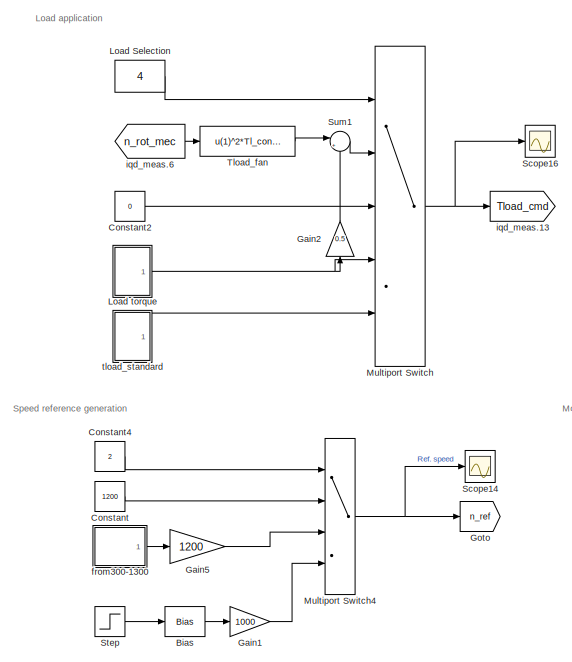
[diagram: root canvas - part 1/3, middle left region]
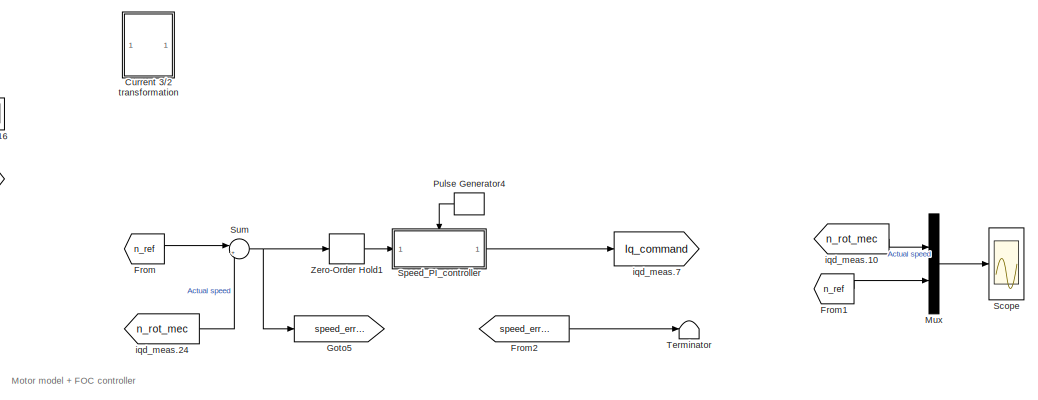
[diagram: root canvas - part 2/3, top center region]
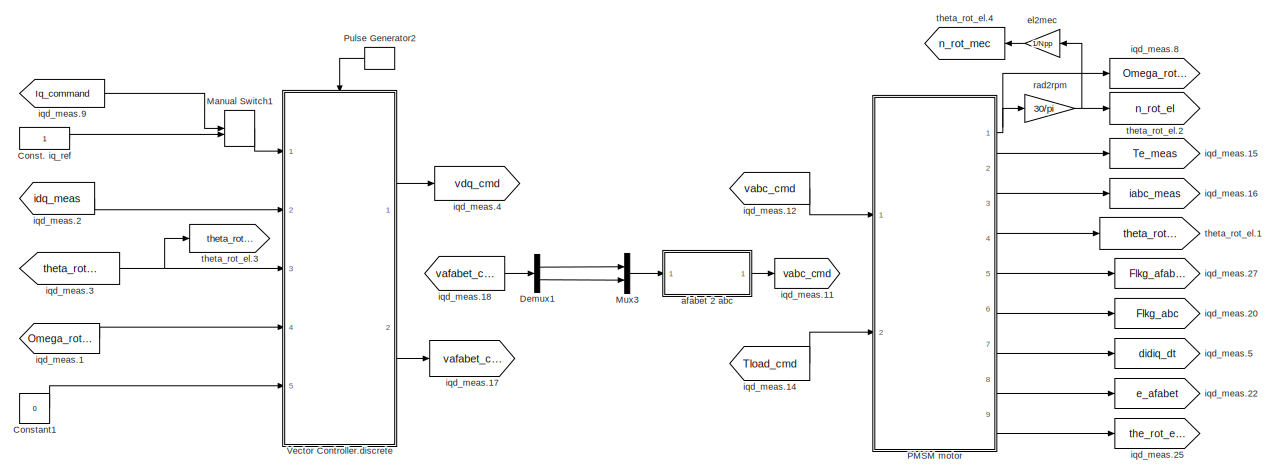
[diagram: root canvas - part 3/3, bottom right region]
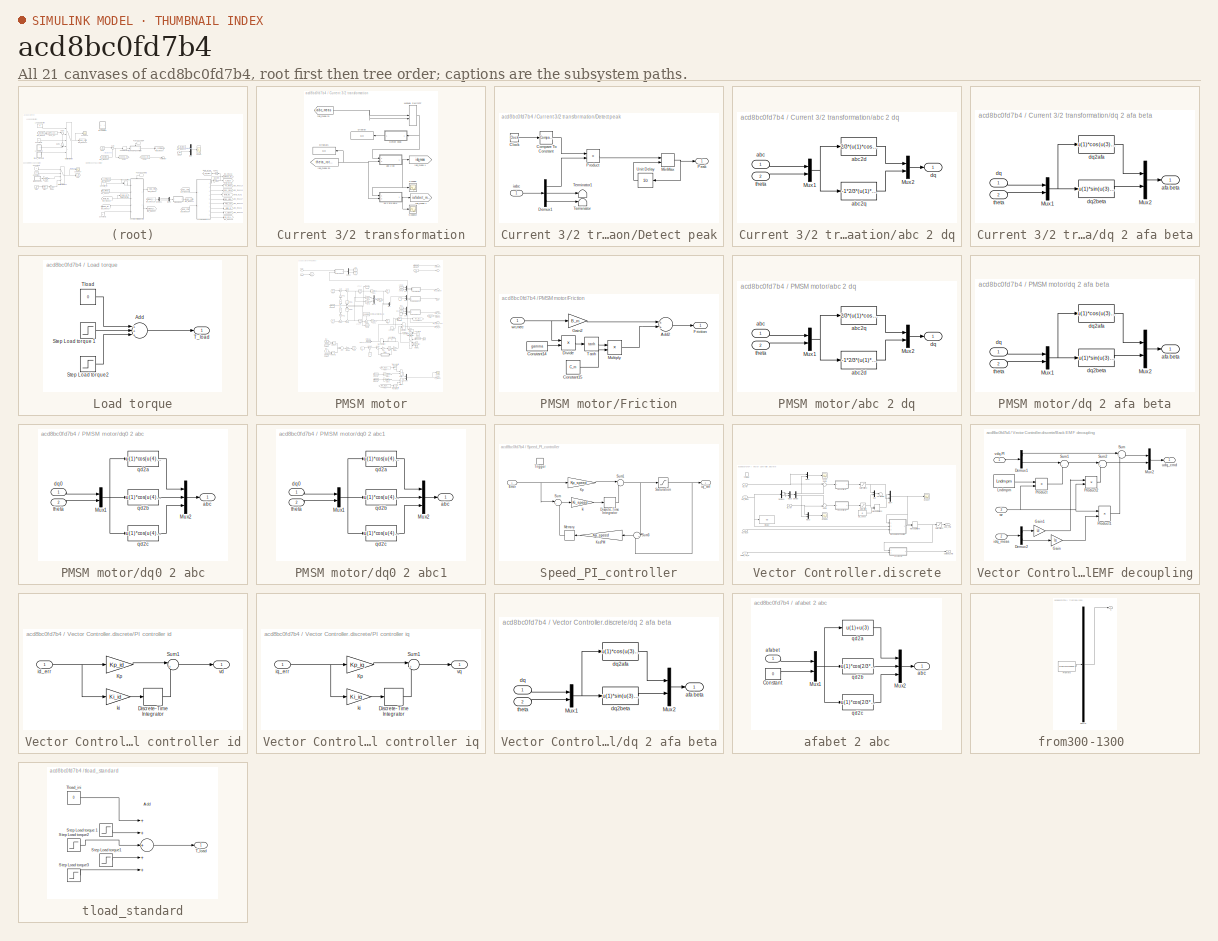
[diagram: thumbnail index - all 21 canvases of the model, root first then tree order]
MODEL slx_acd8bc0fd7b4
KIND model
CONFIG AbsTol = auto
CONFIG EnableMultiTasking = on
CONFIG FixedStep = 1/fs/4
CONFIG InitFcn = controllers\nmodel_parameters\nKT2C = 1/(3/2)/(Npp*Lndmpm);\nTload = 10;\n
CONFIG MaxStep = 1/fs
CONFIG MinStep = auto
CONFIG RelTol = 1e-5
CONFIG SampleTimeConstraint = Unconstrained
CONFIG Solver = ode45
CONFIG SolverName = ode45
CONFIG StartTime = 0
CONFIG StopTime = 16
BLOCK [Bias] Bias
  Bias = 0.3
  SaturateOnIntegerOverflow = off
BLOCK [Constant] Const. iq_ref
BLOCK [Constant] Constant
  Value = 1200
BLOCK [Constant] Constant1
  Value = 0
BLOCK [Constant] Constant2
  Value = 0
BLOCK [Constant] Constant4
  Value = 2
BLOCK [SubSystem] Current 3//2 transformation
  Ports = []
  RequestExecContextInheritance = off
BLOCK [SubSystem] Current 3//2 transformation/Detect peak
  Ports = [1, 1]
  RequestExecContextInheritance = off
BLOCK [Clock] Current 3//2 transformation/Detect peak/Clock
BLOCK [Reference] Current 3//2 transformation/Detect peak/Compare To Constant  REF=simulink/Logic and Bit
Operations/Compare
To Constant
  Ports = [1, 1]
  SourceBlock = simulink/Logic and Bit\nOperations/Compare\nTo Constant
  SourceProductBaseCode = SL
  SourceProductName = Simulink
  SourceType = Compare To Constant
BLOCK [Demux] Current 3//2 transformation/Detect peak/Demux1
  DisplayOption = bar
  Outputs = 3
  Ports = [1, 3]
BLOCK [MinMax] Current 3//2 transformation/Detect peak/MinMax
  Function = max
  InputSameDT = off
  Inputs = 2
  Ports = [2, 1]
  SaturateOnIntegerOverflow = off
BLOCK [Outport] Current 3//2 transformation/Detect peak/Peak
  IconDisplay = Port number
BLOCK [Product] Current 3//2 transformation/Detect peak/Product
  InputSameDT = off
  OutDataTypeStr = Inherit: Inherit via internal rule
  Ports = [2, 1]
  SaturateOnIntegerOverflow = off
BLOCK [Terminator] Current 3//2 transformation/Detect peak/Terminator
BLOCK [Terminator] Current 3//2 transformation/Detect peak/Terminator1
BLOCK [UnitDelay] Current 3//2 transformation/Detect peak/Unit Delay
  SampleTime = 1/5e3
BLOCK [Inport] Current 3//2 transformation/Detect peak/iabc
  IconDisplay = Port number
BLOCK [Display] Current 3//2 transformation/Display
  Decimation = 1
  Ports = [1]
BLOCK [Display] Current 3//2 transformation/Display1
  Decimation = 1
  Ports = [1]
BLOCK [ManualSwitch] Current 3//2 transformation/Manual Switch7
  CurrentSetting = 0
BLOCK [Scope] Current 3//2 transformation/Scope14
  Floating = off
  NumInputPorts = 1
  Ports = [1]
  ScopeSpecificationString = C++SS(StrPVP('Location','[119, 56, 1049, 720]'),StrPVP('Open','off'),MxPVP('AxesTitles',53,'struct(''axes1'',''%<SignalLabel>'')'),StrPVP('ShowLegends','off'),StrPVP('YMin','-5500'),StrPVP('YMax','5500'),StrPVP('SaveName','ScopeData27'),StrPVP('DataFormat','StructureWithTime'),StrPVP('LimitDataPoints','off'),StrPVP('BlockParamSampleTime','0'),StrPVP('Decimation','1'),StrPVP('BlockParamSampleInput'...<+8ch>
BLOCK [Scope] Current 3//2 transformation/Scope6
  Floating = off
  NumInputPorts = 1
  Ports = [1]
  ScopeSpecificationString = C++SS(StrPVP('Location','[533, 264, 1183, 659]'),StrPVP('Open','off'),StrPVP('ZoomMode','xonly'),MxPVP('AxesTitles',53,'struct(''axes1'',''%<SignalLabel>'')'),StrPVP('ShowLegends','off'),StrPVP('SaveName','ScopeData25'),StrPVP('DataFormat','StructureWithTime'),StrPVP('LimitDataPoints','off'),StrPVP('BlockParamSampleTime','0'),StrPVP('Decimation','1'),StrPVP('BlockParamSampleInput','off'))
BLOCK [SubSystem] Current 3//2 transformation/abc 2 dq
  Ports = [2, 1]
  RequestExecContextInheritance = off
BLOCK [Mux] Current 3//2 transformation/abc 2 dq/Mux1
  DisplayOption = bar
  Inputs = 2
  Ports = [2, 1]
BLOCK [Mux] Current 3//2 transformation/abc 2 dq/Mux2
  DisplayOption = bar
  Inputs = 2
  Ports = [2, 1]
BLOCK [Inport] Current 3//2 transformation/abc 2 dq/abc
  IconDisplay = Port number
BLOCK [Fcn] Current 3//2 transformation/abc 2 dq/abc2d
  Expr = 2/3*(u(1)*cos(u(4))+u(2)*cos(u(4)-2*pi/3)+u(3)*cos(u(4)-4*pi/3))
BLOCK [Fcn] Current 3//2 transformation/abc 2 dq/abc2q
  Expr = -1*2/3*(u(1)*sin(u(4))+u(2)*sin(u(4)-2*pi/3)+u(3)*sin(u(4)-4*pi/3))
BLOCK [Outport] Current 3//2 transformation/abc 2 dq/dq
  IconDisplay = Port number
BLOCK [Inport] Current 3//2 transformation/abc 2 dq/theta
  IconDisplay = Port number
  Port = 2
BLOCK [SubSystem] Current 3//2 transformation/dq 2 afa beta
  Ports = [2, 1]
  RequestExecContextInheritance = off
BLOCK [Mux] Current 3//2 transformation/dq 2 afa beta/Mux1
  DisplayOption = bar
  Inputs = 2
  Ports = [2, 1]
BLOCK [Mux] Current 3//2 transformation/dq 2 afa beta/Mux2
  DisplayOption = bar
  Inputs = 2
  Ports = [2, 1]
BLOCK [Outport] Current 3//2 transformation/dq 2 afa beta/afa beta
  IconDisplay = Port number
BLOCK [Inport] Current 3//2 transformation/dq 2 afa beta/dq
  IconDisplay = Port number
BLOCK [Fcn] Current 3//2 transformation/dq 2 afa beta/dq2afa
  Expr = u(1)*cos(u(3))-u(2)*sin(u(3))
BLOCK [Fcn] Current 3//2 transformation/dq 2 afa beta/dq2beta
  Expr = u(1)*sin(u(3))+u(2)*cos(u(3))
BLOCK [Inport] Current 3//2 transformation/dq 2 afa beta/theta
  IconDisplay = Port number
  Port = 2
BLOCK [Goto] Current 3//2 transformation/iqd_meas.1
  GotoTag = idq_meas
  TagVisibility = global
BLOCK [From] Current 3//2 transformation/iqd_meas.20
  CloseFcn = tagdialog Close
  GotoTag = theta_rot_el
  TagVisibility = global
BLOCK [From] Current 3//2 transformation/iqd_meas.21
  CloseFcn = tagdialog Close
  GotoTag = iabc_meas
  TagVisibility = global
BLOCK [Goto] Current 3//2 transformation/iqd_meas.7
  GotoTag = iafabet_meas
  TagVisibility = global
BLOCK [Demux] Demux1
  DisplayOption = bar
  Outputs = 2
  Ports = [1, 2]
BLOCK [From] From
  GotoTag = n_ref
BLOCK [From] From1
  GotoTag = n_ref
BLOCK [From] From2
  GotoTag = speed_error
BLOCK [Gain] Gain1
  Gain = 1000
  OutDataTypeStr = Inherit: Inherit via internal rule
  ParamDataTypeStr = Inherit: Inherit via internal rule
  SaturateOnIntegerOverflow = off
BLOCK [Gain] Gain2
  Gain = 0.5
  OutDataTypeStr = Inherit: Inherit via internal rule
  ParamDataTypeStr = Inherit: Inherit via internal rule
  SaturateOnIntegerOverflow = off
BLOCK [Gain] Gain5
  Gain = 1200
  OutDataTypeStr = Inherit: Inherit via internal rule
  ParamDataTypeStr = Inherit: Inherit via internal rule
  SaturateOnIntegerOverflow = off
BLOCK [Goto] Goto
  GotoTag = n_ref
BLOCK [Goto] Goto5
  GotoTag = speed_error
BLOCK [Constant] Load Selection
  Value = 4
BLOCK [SubSystem] Load torque
  Ports = [0, 1]
  RequestExecContextInheritance = off
BLOCK [Sum] Load torque/Add
  InputSameDT = off
  Inputs = +++
  OutDataTypeStr = Inherit: Inherit via internal rule
  Ports = [3, 1]
  SaturateOnIntegerOverflow = off
BLOCK [Step] Load torque/Step Load torque 1
  After = Tload
  SampleTime = 0
  Time = 1.5
BLOCK [Step] Load torque/Step Load torque2
  After = -Tload
  SampleTime = 0
  Time = 2
BLOCK [Outport] Load torque/T_load
  IconDisplay = Port number
BLOCK [Constant] Load torque/Tload
  Value = 0
BLOCK [ManualSwitch] Manual Switch1
BLOCK [MultiPortSwitch] Multiport Switch
  InputSameDT = off
  Inputs = 4
  Ports = [5, 1]
  SaturateOnIntegerOverflow = off
BLOCK [MultiPortSwitch] Multiport Switch4
  InputSameDT = off
  Ports = [4, 1]
  SaturateOnIntegerOverflow = off
BLOCK [Mux] Mux
  DisplayOption = bar
  Inputs = 2
  Ports = [2, 1]
BLOCK [Mux] Mux3
  DisplayOption = bar
  Inputs = 2
  Ports = [2, 1]
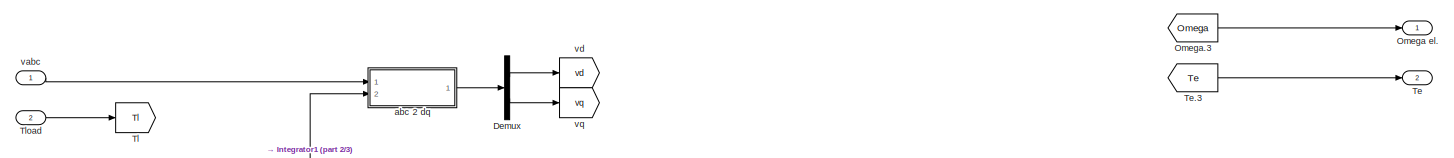
[diagram: PMSM motor - part 1/3, full width, top band]
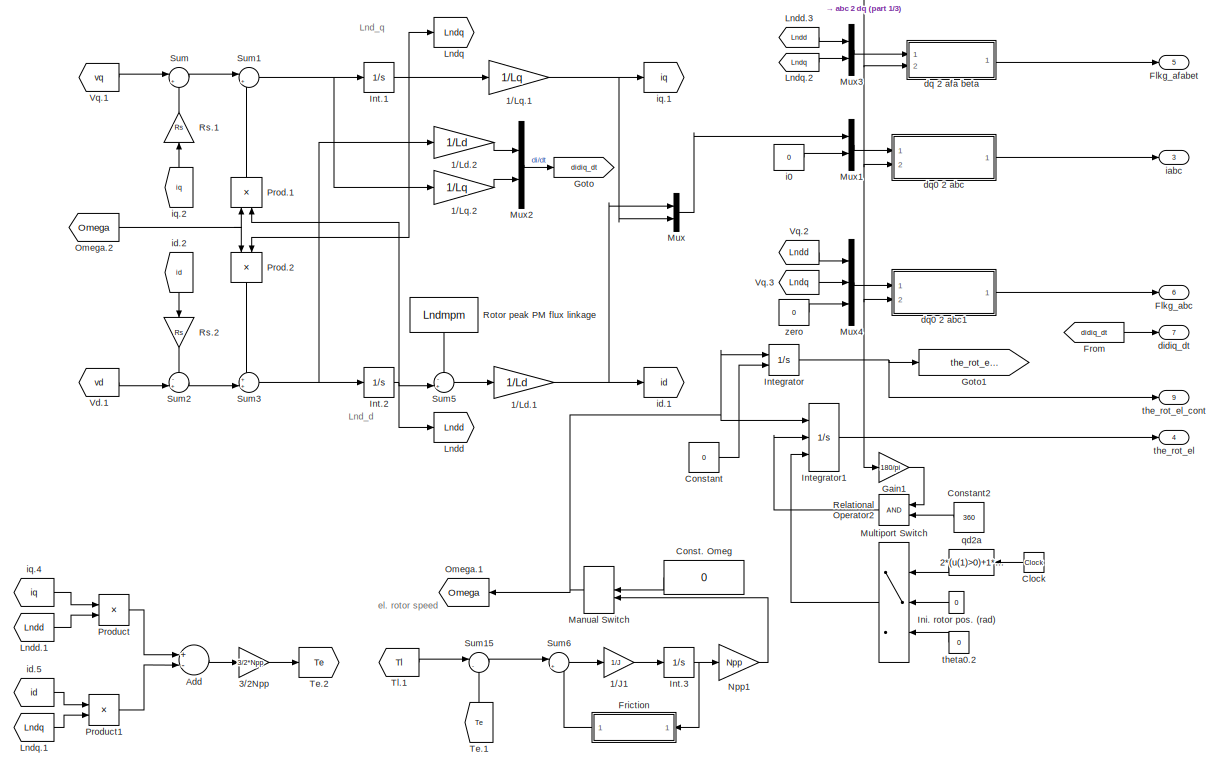
[diagram: PMSM motor - part 2/3, full width, middle band]
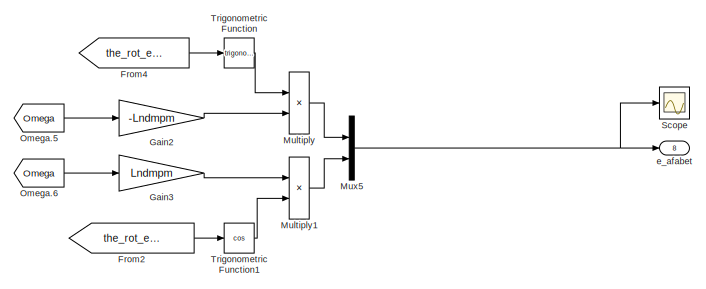
[diagram: PMSM motor - part 3/3, bottom right region]
BLOCK [SubSystem] PMSM motor
  Ports = [2, 9]
  RequestExecContextInheritance = off
BLOCK [Gain] PMSM motor/1//J1
  Gain = 1/J
  OutDataTypeStr = Inherit: Inherit via internal rule
  ParamDataTypeStr = Inherit: Inherit via internal rule
  SaturateOnIntegerOverflow = off
BLOCK [Gain] PMSM motor/1//Ld.1
  Gain = 1/Ld
  OutDataTypeStr = Inherit: Inherit via internal rule
  ParamDataTypeStr = Inherit: Inherit via internal rule
  SaturateOnIntegerOverflow = off
BLOCK [Gain] PMSM motor/1//Ld.2
  Gain = 1/Ld
  OutDataTypeStr = Inherit: Inherit via internal rule
  ParamDataTypeStr = Inherit: Inherit via internal rule
  SaturateOnIntegerOverflow = off
BLOCK [Gain] PMSM motor/1//Lq.1
  Gain = 1/Lq
  OutDataTypeStr = Inherit: Inherit via internal rule
  ParamDataTypeStr = Inherit: Inherit via internal rule
  SaturateOnIntegerOverflow = off
BLOCK [Gain] PMSM motor/1//Lq.2
  Gain = 1/Lq
  OutDataTypeStr = Inherit: Inherit via internal rule
  ParamDataTypeStr = Inherit: Inherit via internal rule
  SaturateOnIntegerOverflow = off
BLOCK [Gain] PMSM motor/3//2Npp
  Gain = 3/2*Npp
  OutDataTypeStr = Inherit: Inherit via internal rule
  ParamDataTypeStr = Inherit: Inherit via internal rule
  SaturateOnIntegerOverflow = off
BLOCK [Sum] PMSM motor/Add
  InputSameDT = off
  Inputs = +-
  OutDataTypeStr = Inherit: Inherit via internal rule
  Ports = [2, 1]
  SaturateOnIntegerOverflow = off
BLOCK [Clock] PMSM motor/Clock
BLOCK [Constant] PMSM motor/Const. Omeg
  Value = 0
BLOCK [Constant] PMSM motor/Constant
  Value = 0
BLOCK [Constant] PMSM motor/Constant2
  Value = 360
BLOCK [Demux] PMSM motor/Demux
  DisplayOption = bar
  Outputs = 2
  Ports = [1, 2]
BLOCK [Outport] PMSM motor/Flkg_abc
  IconDisplay = Port number
  Port = 6
BLOCK [Outport] PMSM motor/Flkg_afabet
  IconDisplay = Port number
  Port = 5
BLOCK [SubSystem] PMSM motor/Friction
  Ports = [1, 1]
  RequestExecContextInheritance = off
BLOCK [Sum] PMSM motor/Friction/Add2
  InputSameDT = off
  OutDataTypeStr = Inherit: Inherit via internal rule
  Ports = [2, 1]
  SaturateOnIntegerOverflow = off
BLOCK [Constant] PMSM motor/Friction/Constant14
  Value = gamma
BLOCK [Constant] PMSM motor/Friction/Constant15
  Value = C_m
BLOCK [Product] PMSM motor/Friction/Divide
  InputSameDT = off
  Inputs = */
  OutDataTypeStr = Inherit: Inherit via internal rule
  Ports = [2, 1]
  RndMeth = Floor
  SaturateOnIntegerOverflow = off
BLOCK [Outport] PMSM motor/Friction/Friction
  IconDisplay = Port number
BLOCK [Gain] PMSM motor/Friction/Gain2
  Gain = B_m
  OutDataTypeStr = Inherit: Inherit via internal rule
  ParamDataTypeStr = Inherit: Inherit via internal rule
  SaturateOnIntegerOverflow = off
BLOCK [Product] PMSM motor/Friction/Multiply
  InputSameDT = off
  OutDataTypeStr = Inherit: Inherit via internal rule
  Ports = [2, 1]
  RndMeth = Floor
  SaturateOnIntegerOverflow = off
BLOCK [Trigonometry] PMSM motor/Friction/Tanh
  Operator = tanh
  Ports = [1, 1]
BLOCK [Inport] PMSM motor/Friction/wr,mec
  IconDisplay = Port number
BLOCK [From] PMSM motor/From
  GotoTag = didiq_dt
BLOCK [From] PMSM motor/From2
  GotoTag = the_rot_el_cont
BLOCK [From] PMSM motor/From4
  GotoTag = the_rot_el_cont
BLOCK [Gain] PMSM motor/Gain1
  Gain = 180/pi
  OutDataTypeStr = Inherit: Inherit via internal rule
  ParamDataTypeStr = Inherit: Inherit via internal rule
  SaturateOnIntegerOverflow = off
BLOCK [Gain] PMSM motor/Gain2
  Gain = -Lndmpm
  OutDataTypeStr = Inherit: Inherit via internal rule
  ParamDataTypeStr = Inherit: Inherit via internal rule
  SaturateOnIntegerOverflow = off
BLOCK [Gain] PMSM motor/Gain3
  Gain = Lndmpm
  OutDataTypeStr = Inherit: Inherit via internal rule
  ParamDataTypeStr = Inherit: Inherit via internal rule
  SaturateOnIntegerOverflow = off
BLOCK [Goto] PMSM motor/Goto
  GotoTag = didiq_dt
BLOCK [Goto] PMSM motor/Goto1
  GotoTag = the_rot_el_cont
BLOCK [Constant] PMSM motor/Ini. rotor pos. (rad)
  Value = 0
BLOCK [Integrator] PMSM motor/Int.1
  Ports = [1, 1]
BLOCK [Integrator] PMSM motor/Int.2
  InitialCondition = Lndd_ini
  Ports = [1, 1]
BLOCK [Integrator] PMSM motor/Int.3
  InitialCondition = Omegae_ini/Npp
  Ports = [1, 1]
BLOCK [Integrator] PMSM motor/Integrator
  InitialConditionSource = external
  Ports = [2, 1]
BLOCK [Integrator] PMSM motor/Integrator1
  ExternalReset = rising
  InitialCondition = pi/3
  InitialConditionSource = external
  Ports = [3, 1]
BLOCK [Goto] PMSM motor/Lndd
  GotoTag = Lndd
BLOCK [From] PMSM motor/Lndd.1
  CloseFcn = tagdialog Close
  GotoTag = Lndd
BLOCK [From] PMSM motor/Lndd.3
  CloseFcn = tagdialog Close
  GotoTag = Lndd
BLOCK [Goto] PMSM motor/Lndq
  GotoTag = Lndq
BLOCK [From] PMSM motor/Lndq.1
  CloseFcn = tagdialog Close
  GotoTag = Lndq
BLOCK [From] PMSM motor/Lndq.2
  CloseFcn = tagdialog Close
  GotoTag = Lndq
BLOCK [ManualSwitch] PMSM motor/Manual Switch
  CurrentSetting = 0
BLOCK [Product] PMSM motor/Multiply
  InputSameDT = off
  OutDataTypeStr = Inherit: Inherit via internal rule
  Ports = [2, 1]
  RndMeth = Floor
  SaturateOnIntegerOverflow = off
BLOCK [Product] PMSM motor/Multiply1
  InputSameDT = off
  OutDataTypeStr = Inherit: Inherit via internal rule
  Ports = [2, 1]
  RndMeth = Floor
  SaturateOnIntegerOverflow = off
BLOCK [MultiPortSwitch] PMSM motor/Multiport Switch
  InputSameDT = off
  Inputs = 2
  Ports = [3, 1]
  SaturateOnIntegerOverflow = off
BLOCK [Mux] PMSM motor/Mux
  DisplayOption = bar
  Inputs = 2
  Ports = [2, 1]
BLOCK [Mux] PMSM motor/Mux1
  DisplayOption = bar
  Inputs = 2
  Ports = [2, 1]
BLOCK [Mux] PMSM motor/Mux2
  DisplayOption = bar
  Inputs = 2
  Ports = [2, 1]
BLOCK [Mux] PMSM motor/Mux3
  DisplayOption = bar
  Inputs = 2
  Ports = [2, 1]
BLOCK [Mux] PMSM motor/Mux4
  DisplayOption = bar
  Inputs = 3
  Ports = [3, 1]
BLOCK [Mux] PMSM motor/Mux5
  DisplayOption = bar
  Inputs = 2
  Ports = [2, 1]
BLOCK [Gain] PMSM motor/Npp1
  Gain = Npp
  OutDataTypeStr = Inherit: Inherit via internal rule
  ParamDataTypeStr = Inherit: Inherit via internal rule
  SaturateOnIntegerOverflow = off
BLOCK [Outport] PMSM motor/Omega el.
  IconDisplay = Port number
BLOCK [Goto] PMSM motor/Omega.1
  GotoTag = Omega
BLOCK [From] PMSM motor/Omega.2
  CloseFcn = tagdialog Close
  GotoTag = Omega
BLOCK [From] PMSM motor/Omega.3
  CloseFcn = tagdialog Close
  GotoTag = Omega
BLOCK [From] PMSM motor/Omega.5
  CloseFcn = tagdialog Close
  GotoTag = Omega
BLOCK [From] PMSM motor/Omega.6
  CloseFcn = tagdialog Close
  GotoTag = Omega
BLOCK [Product] PMSM motor/Prod.1
  InputSameDT = off
  OutDataTypeStr = Inherit: Inherit via internal rule
  Ports = [2, 1]
  SaturateOnIntegerOverflow = off
BLOCK [Product] PMSM motor/Prod.2
  InputSameDT = off
  OutDataTypeStr = Inherit: Inherit via internal rule
  Ports = [2, 1]
  SaturateOnIntegerOverflow = off
BLOCK [Product] PMSM motor/Product
  InputSameDT = off
  OutDataTypeStr = Inherit: Inherit via internal rule
  Ports = [2, 1]
  SaturateOnIntegerOverflow = off
BLOCK [Product] PMSM motor/Product1
  InputSameDT = off
  OutDataTypeStr = Inherit: Inherit via internal rule
  Ports = [2, 1]
  SaturateOnIntegerOverflow = off
BLOCK [RelationalOperator] PMSM motor/Relational Operator2
  InputSameDT = off
  OutDataTypeStr = boolean
  Ports = [2, 1]
BLOCK [Constant] PMSM motor/Rotor peak PM flux linkage
  Value = Lndmpm
BLOCK [Gain] PMSM motor/Rs.1
  Gain = Rs
  OutDataTypeStr = Inherit: Inherit via internal rule
  ParamDataTypeStr = Inherit: Inherit via internal rule
  SaturateOnIntegerOverflow = off
BLOCK [Gain] PMSM motor/Rs.2
  Gain = Rs
  OutDataTypeStr = Inherit: Inherit via internal rule
  ParamDataTypeStr = Inherit: Inherit via internal rule
  SaturateOnIntegerOverflow = off
BLOCK [Scope] PMSM motor/Scope
  Floating = off
  NumInputPorts = 1
  Ports = [1]
  ScopeSpecificationString = Simulink.scopes.TimeScopeBlockCfg('CurrentConfiguration', extmgr.ConfigurationSet(extmgr.Configuration('Core','General UI',true),extmgr.Configuration('Core','Source UI',true),extmgr.Configuration('Sources','WiredSimulink',true,'DataLoggingVariableName','ScopeData1'),extmgr.Configuration('Visuals','Time Domain',true,'SerializedDisplays',{struct('MinYLimReal','-77.9361','MaxYLimReal','76.69944','YLa...<+1425ch>
BLOCK [Sum] PMSM motor/Sum
  IconShape = round
  InputSameDT = off
  Inputs = |+-
  OutDataTypeStr = Inherit: Inherit via internal rule
  Ports = [2, 1]
  SaturateOnIntegerOverflow = off
BLOCK [Sum] PMSM motor/Sum1
  IconShape = round
  InputSameDT = off
  Inputs = |+-
  OutDataTypeStr = Inherit: Inherit via internal rule
  Ports = [2, 1]
  SaturateOnIntegerOverflow = off
BLOCK [Sum] PMSM motor/Sum15
  IconShape = round
  InputSameDT = off
  Inputs = |-+
  OutDataTypeStr = Inherit: Inherit via internal rule
  Ports = [2, 1]
  SaturateOnIntegerOverflow = off
BLOCK [Sum] PMSM motor/Sum2
  IconShape = round
  InputSameDT = off
  Inputs = -+|
  OutDataTypeStr = Inherit: Inherit via internal rule
  Ports = [2, 1]
  SaturateOnIntegerOverflow = off
BLOCK [Sum] PMSM motor/Sum3
  IconShape = round
  InputSameDT = off
  Inputs = ++|
  OutDataTypeStr = Inherit: Inherit via internal rule
  Ports = [2, 1]
  SaturateOnIntegerOverflow = off
BLOCK [Sum] PMSM motor/Sum5
  IconShape = round
  InputSameDT = off
  Inputs = -+|
  OutDataTypeStr = Inherit: Inherit via internal rule
  Ports = [2, 1]
  SaturateOnIntegerOverflow = off
BLOCK [Sum] PMSM motor/Sum6
  IconShape = round
  InputSameDT = off
  Inputs = |+-
  OutDataTypeStr = Inherit: Inherit via internal rule
  Ports = [2, 1]
  SaturateOnIntegerOverflow = off
BLOCK [Outport] PMSM motor/Te
  IconDisplay = Port number
  Port = 2
BLOCK [From] PMSM motor/Te.1
  CloseFcn = tagdialog Close
  GotoTag = Te
BLOCK [Goto] PMSM motor/Te.2
  GotoTag = Te
BLOCK [From] PMSM motor/Te.3
  CloseFcn = tagdialog Close
  GotoTag = Te
BLOCK [Goto] PMSM motor/Tl
  GotoTag = Tl
BLOCK [From] PMSM motor/Tl.1
  CloseFcn = tagdialog Close
  GotoTag = Tl
BLOCK [Inport] PMSM motor/Tload
  IconDisplay = Port number
  Port = 2
BLOCK [Trigonometry] PMSM motor/Trigonometric Function
  Ports = [1, 1]
BLOCK [Trigonometry] PMSM motor/Trigonometric Function1
  Operator = cos
  Ports = [1, 1]
BLOCK [From] PMSM motor/Vd.1
  CloseFcn = tagdialog Close
  GotoTag = vd
BLOCK [From] PMSM motor/Vq.1
  CloseFcn = tagdialog Close
  GotoTag = vq
BLOCK [From] PMSM motor/Vq.2
  CloseFcn = tagdialog Close
  GotoTag = Lndd
BLOCK [From] PMSM motor/Vq.3
  CloseFcn = tagdialog Close
  GotoTag = Lndq
BLOCK [SubSystem] PMSM motor/abc 2 dq
  Ports = [2, 1]
  RequestExecContextInheritance = off
BLOCK [Mux] PMSM motor/abc 2 dq/Mux1
  DisplayOption = bar
  Inputs = 2
  Ports = [2, 1]
BLOCK [Mux] PMSM motor/abc 2 dq/Mux2
  DisplayOption = bar
  Inputs = 2
  Ports = [2, 1]
BLOCK [Inport] PMSM motor/abc 2 dq/abc
  IconDisplay = Port number
BLOCK [Fcn] PMSM motor/abc 2 dq/abc2d
  Expr = -1*2/3*(u(1)*sin(u(4))+u(2)*sin(u(4)-2*pi/3)+u(3)*sin(u(4)-4*pi/3))
BLOCK [Fcn] PMSM motor/abc 2 dq/abc2q
  Expr = 2/3*(u(1)*cos(u(4))+u(2)*cos(u(4)-2*pi/3)+u(3)*cos(u(4)-4*pi/3))
BLOCK [Outport] PMSM motor/abc 2 dq/dq
  IconDisplay = Port number
BLOCK [Inport] PMSM motor/abc 2 dq/theta
  IconDisplay = Port number
  Port = 2
BLOCK [Outport] PMSM motor/didiq_dt
  IconDisplay = Port number
  Port = 7
BLOCK [SubSystem] PMSM motor/dq 2 afa beta
  Ports = [2, 1]
  RequestExecContextInheritance = off
BLOCK [Mux] PMSM motor/dq 2 afa beta/Mux1
  DisplayOption = bar
  Inputs = 2
  Ports = [2, 1]
BLOCK [Mux] PMSM motor/dq 2 afa beta/Mux2
  DisplayOption = bar
  Inputs = 2
  Ports = [2, 1]
BLOCK [Outport] PMSM motor/dq 2 afa beta/afa beta
  IconDisplay = Port number
BLOCK [Inport] PMSM motor/dq 2 afa beta/dq
  IconDisplay = Port number
BLOCK [Fcn] PMSM motor/dq 2 afa beta/dq2afa
  Expr = u(1)*cos(u(3))-u(2)*sin(u(3))
BLOCK [Fcn] PMSM motor/dq 2 afa beta/dq2beta
  Expr = u(1)*sin(u(3))+u(2)*cos(u(3))
BLOCK [Inport] PMSM motor/dq 2 afa beta/theta
  IconDisplay = Port number
  Port = 2
BLOCK [SubSystem] PMSM motor/dq0 2 abc
  Ports = [2, 1]
  RequestExecContextInheritance = off
BLOCK [Mux] PMSM motor/dq0 2 abc/Mux1
  DisplayOption = bar
  Inputs = 2
  Ports = [2, 1]
BLOCK [Mux] PMSM motor/dq0 2 abc/Mux2
  DisplayOption = bar
  Inputs = 3
  Ports = [3, 1]
BLOCK [Outport] PMSM motor/dq0 2 abc/abc
  IconDisplay = Port number
BLOCK [Inport] PMSM motor/dq0 2 abc/dq0
  IconDisplay = Port number
BLOCK [Fcn] PMSM motor/dq0 2 abc/qd2a
  Expr = u(1)*cos(u(4))-u(2)*sin(u(4))+u(3)
BLOCK [Fcn] PMSM motor/dq0 2 abc/qd2b
  Expr = u(1)*cos(u(4)-2/3*pi)-u(2)*sin(u(4)-2/3*pi)+u(3)
BLOCK [Fcn] PMSM motor/dq0 2 abc/qd2c
  Expr = u(1)*cos(u(4)+2/3*pi)-u(2)*sin(u(4)+2/3*pi)+u(3)
BLOCK [Inport] PMSM motor/dq0 2 abc/theta
  IconDisplay = Port number
  Port = 2
BLOCK [SubSystem] PMSM motor/dq0 2 abc1
  Ports = [2, 1]
  RequestExecContextInheritance = off
BLOCK [Mux] PMSM motor/dq0 2 abc1/Mux1
  DisplayOption = bar
  Inputs = 2
  Ports = [2, 1]
BLOCK [Mux] PMSM motor/dq0 2 abc1/Mux2
  DisplayOption = bar
  Inputs = 3
  Ports = [3, 1]
BLOCK [Outport] PMSM motor/dq0 2 abc1/abc
  IconDisplay = Port number
BLOCK [Inport] PMSM motor/dq0 2 abc1/dq0
  IconDisplay = Port number
BLOCK [Fcn] PMSM motor/dq0 2 abc1/qd2a
  Expr = u(1)*cos(u(4))-u(2)*sin(u(4))+u(3)
BLOCK [Fcn] PMSM motor/dq0 2 abc1/qd2b
  Expr = u(1)*cos(u(4)-2/3*pi)-u(2)*sin(u(4)-2/3*pi)+u(3)
BLOCK [Fcn] PMSM motor/dq0 2 abc1/qd2c
  Expr = u(1)*cos(u(4)+2/3*pi)-u(2)*sin(u(4)+2/3*pi)+u(3)
BLOCK [Inport] PMSM motor/dq0 2 abc1/theta
  IconDisplay = Port number
  Port = 2
BLOCK [Outport] PMSM motor/e_afabet
  IconDisplay = Port number
  Port = 8
BLOCK [Constant] PMSM motor/i0
  Value = 0
BLOCK [Outport] PMSM motor/iabc
  IconDisplay = Port number
  Port = 3
BLOCK [Goto] PMSM motor/id.1
  GotoTag = id
BLOCK [From] PMSM motor/id.2
  CloseFcn = tagdialog Close
  GotoTag = id
BLOCK [From] PMSM motor/id.5
  CloseFcn = tagdialog Close
  GotoTag = id
BLOCK [Goto] PMSM motor/iq.1
  GotoTag = iq
BLOCK [From] PMSM motor/iq.2
  CloseFcn = tagdialog Close
  GotoTag = iq
BLOCK [From] PMSM motor/iq.4
  CloseFcn = tagdialog Close
  GotoTag = iq
BLOCK [Fcn] PMSM motor/qd2a
  Expr = 2*(u(1)>0)+1*(u(1)==0)
BLOCK [Outport] PMSM motor/the_rot_el
  IconDisplay = Port number
  Port = 4
BLOCK [Outport] PMSM motor/the_rot_el_cont
  IconDisplay = Port number
  Port = 9
BLOCK [Constant] PMSM motor/theta0.2
  Value = 0
BLOCK [Inport] PMSM motor/vabc
  IconDisplay = Port number
BLOCK [Goto] PMSM motor/vd
  GotoTag = vd
BLOCK [Goto] PMSM motor/vq
  GotoTag = vq
BLOCK [Constant] PMSM motor/zero
  Value = 0
BLOCK [DiscretePulseGenerator] Pulse Generator2
  Period = 1/fs
  Ports = [0, 1]
  PulseType = Time based
  PulseWidth = 50
BLOCK [DiscretePulseGenerator] Pulse Generator4
  Period = 1/fs
  Ports = [0, 1]
  PulseType = Time based
  PulseWidth = 50
BLOCK [Scope] Scope
  Floating = off
  NumInputPorts = 1
  Ports = [1]
  ScopeSpecificationString = Simulink.scopes.TimeScopeBlockCfg('CurrentConfiguration', extmgr.ConfigurationSet(extmgr.Configuration('Core','General UI',true),extmgr.Configuration('Core','Source UI',true),extmgr.Configuration('Sources','WiredSimulink',true,'DataLoggingVariableName','ScopeData1'),extmgr.Configuration('Visuals','Time Domain',true,'SerializedDisplays',{struct('MinYLimReal','-198.90718','MaxYLimReal','1790.16466',...<+1429ch>
BLOCK [Scope] Scope14
  Floating = off
  NumInputPorts = 1
  Ports = [1]
  ScopeSpecificationString = Simulink.scopes.TimeScopeBlockCfg('CurrentConfiguration', extmgr.ConfigurationSet(extmgr.Configuration('Core','General UI',true),extmgr.Configuration('Core','Source UI',true),extmgr.Configuration('Sources','WiredSimulink',true,'DataLoggingVariableName','ScopeData1'),extmgr.Configuration('Visuals','Time Domain',true,'SerializedDisplays',{struct('MinYLimReal','175.00000','MaxYLimReal','1425.00000','...<+1439ch>
BLOCK [Scope] Scope16
  Floating = off
  NumInputPorts = 1
  Ports = [1]
  ScopeSpecificationString = Simulink.scopes.TimeScopeBlockCfg('CurrentConfiguration', extmgr.ConfigurationSet(extmgr.Configuration('Core','General UI',true),extmgr.Configuration('Core','Source UI',true),extmgr.Configuration('Sources','WiredSimulink',true,'DataLoggingVariableName','ScopeData2'),extmgr.Configuration('Visuals','Time Domain',true,'SerializedDisplays',{struct('MinYLimReal','-1.25','MaxYLimReal','11.25','YLabelRea...<+1361ch>
BLOCK [SubSystem] Speed_PI_controller
  Ports = [1, 1, 0, 1]
  RequestExecContextInheritance = off
BLOCK [DiscreteIntegrator] Speed_PI_controller/Discrete-Time Integrator
  ICPrevOutput = DiscIntNeverNeededParam
  ICPrevScaledInput = DiscIntNeverNeededParam
  Ports = [1, 1]
  SampleTime = -1
BLOCK [Inport] Speed_PI_controller/Error
  IconDisplay = Port number
BLOCK [Gain] Speed_PI_controller/KasPM
  Gain = Ka_speed
  OutDataTypeStr = Inherit: Inherit via internal rule
  ParamDataTypeStr = Inherit: Inherit via internal rule
  SaturateOnIntegerOverflow = off
BLOCK [Gain] Speed_PI_controller/Kp
  Gain = Kp_speed
  OutDataTypeStr = Inherit: Inherit via internal rule
  ParamDataTypeStr = Inherit: Inherit via internal rule
  SaturateOnIntegerOverflow = off
BLOCK [Memory] Speed_PI_controller/Memory
  InheritSampleTime = on
BLOCK [Saturate] Speed_PI_controller/Saturation
  InputPortMap = u0
  LowerLimit = -i_maxim_PM
  Ports = [1, 1]
  UpperLimit = i_maxim_PM
BLOCK [Sum] Speed_PI_controller/Sum
  IconShape = round
  InputSameDT = off
  Inputs = |+-
  OutDataTypeStr = Inherit: Inherit via internal rule
  Ports = [2, 1]
  SaturateOnIntegerOverflow = off
BLOCK [Sum] Speed_PI_controller/Sum1
  IconShape = round
  InputSameDT = off
  Inputs = |++
  OutDataTypeStr = Inherit: Inherit via internal rule
  Ports = [2, 1]
  SaturateOnIntegerOverflow = off
BLOCK [Sum] Speed_PI_controller/Sum3
  IconShape = round
  InputSameDT = off
  Inputs = |+-
  OutDataTypeStr = Inherit: Inherit via internal rule
  Ports = [2, 1]
  SaturateOnIntegerOverflow = off
BLOCK [TriggerPort] Speed_PI_controller/Trigger
  Ports = []
  StatesWhenEnabling = held
  VariantControl = (inherit)
BLOCK [Outport] Speed_PI_controller/iq_ref
  IconDisplay = Port number
BLOCK [Gain] Speed_PI_controller/ki
  Gain = Ki_speed
  OutDataTypeStr = Inherit: Inherit via internal rule
  ParamDataTypeStr = Inherit: Inherit via internal rule
  SaturateOnIntegerOverflow = off
BLOCK [Step] Step
  SampleTime = 0
BLOCK [Sum] Sum
  IconShape = round
  InputSameDT = off
  Inputs = |+-
  OutDataTypeStr = Inherit: Inherit via internal rule
  Ports = [2, 1]
  SaturateOnIntegerOverflow = off
BLOCK [Sum] Sum1
  IconShape = round
  InputSameDT = off
  Inputs = |++
  OutDataTypeStr = Inherit: Inherit via internal rule
  Ports = [2, 1]
  SaturateOnIntegerOverflow = off
BLOCK [Terminator] Terminator
BLOCK [Fcn] Tload_fan
  Expr = u(1)^2*Tl_const
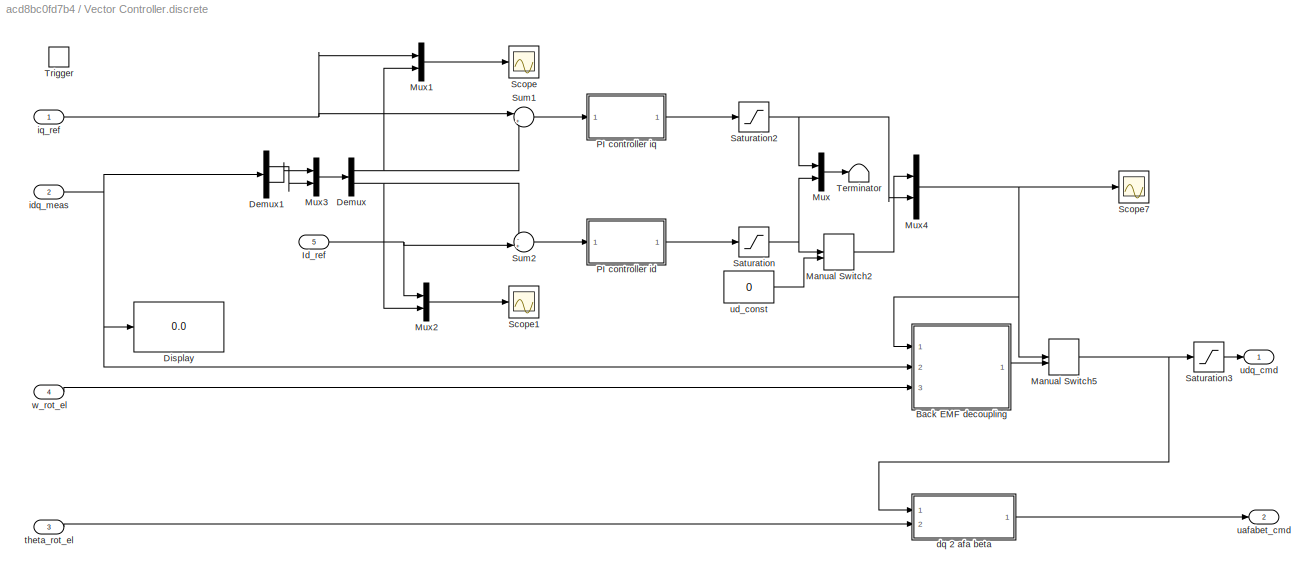
BLOCK [SubSystem] Vector Controller.discrete
  Ports = [5, 2, 0, 1]
  RequestExecContextInheritance = off
BLOCK [SubSystem] Vector Controller.discrete/Back EMF decoupling
  Ports = [3, 1]
  RequestExecContextInheritance = off
BLOCK [Demux] Vector Controller.discrete/Back EMF decoupling/Demux1
  DisplayOption = bar
  Outputs = 2
  Ports = [1, 2]
BLOCK [Demux] Vector Controller.discrete/Back EMF decoupling/Demux2
  DisplayOption = bar
  Outputs = 2
  Ports = [1, 2]
BLOCK [Gain] Vector Controller.discrete/Back EMF decoupling/Gain
  Gain = Lq
  OutDataTypeStr = Inherit: Inherit via internal rule
  ParamDataTypeStr = Inherit: Inherit via internal rule
  SaturateOnIntegerOverflow = off
BLOCK [Gain] Vector Controller.discrete/Back EMF decoupling/Gain1
  Gain = Ld
  OutDataTypeStr = Inherit: Inherit via internal rule
  ParamDataTypeStr = Inherit: Inherit via internal rule
  SaturateOnIntegerOverflow = off
BLOCK [Constant] Vector Controller.discrete/Back EMF decoupling/Lndmpm
  Value = Lndmpm
BLOCK [Mux] Vector Controller.discrete/Back EMF decoupling/Mux2
  DisplayOption = bar
  Inputs = 2
  Ports = [2, 1]
BLOCK [Product] Vector Controller.discrete/Back EMF decoupling/Product
  InputSameDT = off
  OutDataTypeStr = Inherit: Inherit via internal rule
  Ports = [2, 1]
  SaturateOnIntegerOverflow = off
BLOCK [Product] Vector Controller.discrete/Back EMF decoupling/Product1
  InputSameDT = off
  OutDataTypeStr = Inherit: Inherit via internal rule
  Ports = [2, 1]
  SaturateOnIntegerOverflow = off
BLOCK [Product] Vector Controller.discrete/Back EMF decoupling/Product2
  InputSameDT = off
  OutDataTypeStr = Inherit: Inherit via internal rule
  Ports = [2, 1]
  SaturateOnIntegerOverflow = off
BLOCK [Sum] Vector Controller.discrete/Back EMF decoupling/Sum
  IconShape = round
  InputSameDT = off
  Inputs = |+-
  OutDataTypeStr = Inherit: Inherit via internal rule
  Ports = [2, 1]
  SaturateOnIntegerOverflow = off
BLOCK [Sum] Vector Controller.discrete/Back EMF decoupling/Sum1
  IconShape = round
  InputSameDT = off
  Inputs = |++
  OutDataTypeStr = Inherit: Inherit via internal rule
  Ports = [2, 1]
  SaturateOnIntegerOverflow = off
BLOCK [Sum] Vector Controller.discrete/Back EMF decoupling/Sum2
  IconShape = round
  InputSameDT = off
  Inputs = |++
  OutDataTypeStr = Inherit: Inherit via internal rule
  Ports = [2, 1]
  SaturateOnIntegerOverflow = off
BLOCK [Inport] Vector Controller.discrete/Back EMF decoupling/idq_meas
  IconDisplay = Port number
  Port = 2
BLOCK [Outport] Vector Controller.discrete/Back EMF decoupling/udq_cmd
  IconDisplay = Port number
BLOCK [Inport] Vector Controller.discrete/Back EMF decoupling/vdq,PI
  IconDisplay = Port number
BLOCK [Inport] Vector Controller.discrete/Back EMF decoupling/wr
  IconDisplay = Port number
  Port = 3
BLOCK [Demux] Vector Controller.discrete/Demux
  DisplayOption = bar
  Outputs = 2
  Ports = [1, 2]
BLOCK [Demux] Vector Controller.discrete/Demux1
  DisplayOption = bar
  Outputs = 2
  Ports = [1, 2]
BLOCK [Display] Vector Controller.discrete/Display
  Decimation = 1
  Ports = [1]
BLOCK [Inport] Vector Controller.discrete/Id_ref
  IconDisplay = Port number
  Port = 5
BLOCK [ManualSwitch] Vector Controller.discrete/Manual Switch2
BLOCK [ManualSwitch] Vector Controller.discrete/Manual Switch5
BLOCK [Mux] Vector Controller.discrete/Mux
  DisplayOption = bar
  Inputs = 2
  Ports = [2, 1]
BLOCK [Mux] Vector Controller.discrete/Mux1
  Commented = on
  DisplayOption = bar
  Inputs = 2
  Ports = [2, 1]
BLOCK [Mux] Vector Controller.discrete/Mux2
  Commented = on
  DisplayOption = bar
  Inputs = 2
  Ports = [2, 1]
BLOCK [Mux] Vector Controller.discrete/Mux3
  DisplayOption = bar
  Inputs = 2
  Ports = [2, 1]
BLOCK [Mux] Vector Controller.discrete/Mux4
  DisplayOption = bar
  Inputs = 2
  Ports = [2, 1]
BLOCK [SubSystem] Vector Controller.discrete/PI controller id
  Ports = [1, 1]
  RequestExecContextInheritance = off
BLOCK [DiscreteIntegrator] Vector Controller.discrete/PI controller id/Discrete-Time Integrator
  ICPrevOutput = DiscIntNeverNeededParam
  ICPrevScaledInput = DiscIntNeverNeededParam
  Ports = [1, 1]
  SampleTime = -1
BLOCK [Gain] Vector Controller.discrete/PI controller id/Kp
  Gain = Kp_id
  OutDataTypeStr = Inherit: Inherit via internal rule
  ParamDataTypeStr = Inherit: Inherit via internal rule
  SaturateOnIntegerOverflow = off
BLOCK [Sum] Vector Controller.discrete/PI controller id/Sum1
  IconShape = round
  InputSameDT = off
  Inputs = |++
  OutDataTypeStr = Inherit: Inherit via internal rule
  Ports = [2, 1]
  SaturateOnIntegerOverflow = off
BLOCK [Inport] Vector Controller.discrete/PI controller id/id_err
  IconDisplay = Port number
BLOCK [Gain] Vector Controller.discrete/PI controller id/ki
  Gain = Ki_id
  OutDataTypeStr = Inherit: Inherit via internal rule
  ParamDataTypeStr = Inherit: Inherit via internal rule
  SaturateOnIntegerOverflow = off
BLOCK [Outport] Vector Controller.discrete/PI controller id/vd
  IconDisplay = Port number
BLOCK [SubSystem] Vector Controller.discrete/PI controller iq
  Ports = [1, 1]
  RequestExecContextInheritance = off
BLOCK [DiscreteIntegrator] Vector Controller.discrete/PI controller iq/Discrete-Time Integrator
  ICPrevOutput = DiscIntNeverNeededParam
  ICPrevScaledInput = DiscIntNeverNeededParam
  Ports = [1, 1]
  SampleTime = -1
BLOCK [Gain] Vector Controller.discrete/PI controller iq/Kp
  Gain = Kp_iq
  OutDataTypeStr = Inherit: Inherit via internal rule
  ParamDataTypeStr = Inherit: Inherit via internal rule
  SaturateOnIntegerOverflow = off
BLOCK [Sum] Vector Controller.discrete/PI controller iq/Sum1
  IconShape = round
  InputSameDT = off
  Inputs = |++
  OutDataTypeStr = Inherit: Inherit via internal rule
  Ports = [2, 1]
  SaturateOnIntegerOverflow = off
BLOCK [Inport] Vector Controller.discrete/PI controller iq/iq_err
  IconDisplay = Port number
BLOCK [Gain] Vector Controller.discrete/PI controller iq/ki
  Gain = Ki_iq
  OutDataTypeStr = Inherit: Inherit via internal rule
  ParamDataTypeStr = Inherit: Inherit via internal rule
  SaturateOnIntegerOverflow = off
BLOCK [Outport] Vector Controller.discrete/PI controller iq/vq
  IconDisplay = Port number
BLOCK [Saturate] Vector Controller.discrete/Saturation
  InputPortMap = u0
  LowerLimit = -Vph
  Ports = [1, 1]
  UpperLimit = Vph
BLOCK [Saturate] Vector Controller.discrete/Saturation2
  InputPortMap = u0
  LowerLimit = -Vph
  Ports = [1, 1]
  UpperLimit = Vph
BLOCK [Saturate] Vector Controller.discrete/Saturation3
  InputPortMap = u0
  LowerLimit = -Vph
  Ports = [1, 1]
  UpperLimit = Vph
BLOCK [Scope] Vector Controller.discrete/Scope
  Commented = on
  Floating = off
  NumInputPorts = 1
  Ports = [1]
  ScopeSpecificationString = Simulink.scopes.TimeScopeBlockCfg('CurrentConfiguration', extmgr.ConfigurationSet(extmgr.Configuration('Core','General UI',true),extmgr.Configuration('Core','Source UI',true),extmgr.Configuration('Sources','WiredSimulink',true,'DataLoggingVariableName','ScopeData1'),extmgr.Configuration('Visuals','Time Domain',true),extmgr.Configuration('Tools','Plot Navigation',true),extmgr.Configuration('Tools',...<+40ch>
BLOCK [Scope] Vector Controller.discrete/Scope1
  Commented = on
  Floating = off
  NumInputPorts = 1
  Ports = [1]
  ScopeSpecificationString = Simulink.scopes.TimeScopeBlockCfg('CurrentConfiguration', extmgr.ConfigurationSet(extmgr.Configuration('Core','General UI',true),extmgr.Configuration('Core','Source UI',true),extmgr.Configuration('Sources','WiredSimulink',true,'DataLoggingVariableName','ScopeData2'),extmgr.Configuration('Visuals','Time Domain',true),extmgr.Configuration('Tools','Plot Navigation',true),extmgr.Configuration('Tools',...<+40ch>
BLOCK [Scope] Vector Controller.discrete/Scope7
  Floating = off
  NumInputPorts = 1
  Ports = [1]
  ScopeSpecificationString = C++SS(StrPVP('Location','[350, 309, 931, 666]'),StrPVP('Open','off'),MxPVP('AxesTitles',53,'struct(''axes1'',''%<SignalLabel>'')'),StrPVP('ShowLegends','off'),StrPVP('YMin','-10'),StrPVP('YMax','17.5'),StrPVP('SaveName','ScopeData30'),StrPVP('DataFormat','StructureWithTime'),StrPVP('LimitDataPoints','off'),StrPVP('BlockParamSampleTime','0'),StrPVP('Decimation','1'),StrPVP('BlockParamSampleInput','...<+6ch>
BLOCK [Sum] Vector Controller.discrete/Sum1
  IconShape = round
  InputSameDT = off
  Inputs = |+-
  OutDataTypeStr = Inherit: Inherit via internal rule
  Ports = [2, 1]
  SaturateOnIntegerOverflow = off
BLOCK [Sum] Vector Controller.discrete/Sum2
  IconShape = round
  InputSameDT = off
  Inputs = -+|
  OutDataTypeStr = Inherit: Inherit via internal rule
  Ports = [2, 1]
  SaturateOnIntegerOverflow = off
BLOCK [Terminator] Vector Controller.discrete/Terminator
BLOCK [TriggerPort] Vector Controller.discrete/Trigger
  Ports = []
  StatesWhenEnabling = held
  VariantControl = (inherit)
BLOCK [SubSystem] Vector Controller.discrete/dq 2 afa beta
  Ports = [2, 1]
  RequestExecContextInheritance = off
BLOCK [Mux] Vector Controller.discrete/dq 2 afa beta/Mux1
  DisplayOption = bar
  Inputs = 2
  Ports = [2, 1]
BLOCK [Mux] Vector Controller.discrete/dq 2 afa beta/Mux2
  DisplayOption = bar
  Inputs = 2
  Ports = [2, 1]
BLOCK [Outport] Vector Controller.discrete/dq 2 afa beta/afa beta
  IconDisplay = Port number
BLOCK [Inport] Vector Controller.discrete/dq 2 afa beta/dq
  IconDisplay = Port number
BLOCK [Fcn] Vector Controller.discrete/dq 2 afa beta/dq2afa
  Expr = u(1)*cos(u(3))-u(2)*sin(u(3))
BLOCK [Fcn] Vector Controller.discrete/dq 2 afa beta/dq2beta
  Expr = u(1)*sin(u(3))+u(2)*cos(u(3))
BLOCK [Inport] Vector Controller.discrete/dq 2 afa beta/theta
  IconDisplay = Port number
  Port = 2
BLOCK [Inport] Vector Controller.discrete/idq_meas
  IconDisplay = Port number
  Port = 2
BLOCK [Inport] Vector Controller.discrete/iq_ref
  IconDisplay = Port number
BLOCK [Inport] Vector Controller.discrete/theta_rot_el
  IconDisplay = Port number
  Port = 3
BLOCK [Outport] Vector Controller.discrete/uafabet_cmd
  IconDisplay = Port number
  Port = 2
BLOCK [Constant] Vector Controller.discrete/ud_const
  Value = 0
BLOCK [Outport] Vector Controller.discrete/udq_cmd
  IconDisplay = Port number
BLOCK [Inport] Vector Controller.discrete/w_rot_el
  IconDisplay = Port number
  Port = 4
BLOCK [ZeroOrderHold] Zero-Order Hold1
  SampleTime = 1/5e3
BLOCK [SubSystem] afabet 2 abc
  Ports = [1, 1]
  RequestExecContextInheritance = off
BLOCK [Constant] afabet 2 abc/Constant
  Value = 0
BLOCK [Mux] afabet 2 abc/Mux1
  DisplayOption = bar
  Inputs = 2
  Ports = [2, 1]
BLOCK [Mux] afabet 2 abc/Mux2
  DisplayOption = bar
  Inputs = 3
  Ports = [3, 1]
BLOCK [Outport] afabet 2 abc/abc
  IconDisplay = Port number
BLOCK [Inport] afabet 2 abc/afabet
  IconDisplay = Port number
BLOCK [Fcn] afabet 2 abc/qd2a
  Expr = u(1)+u(3)
BLOCK [Fcn] afabet 2 abc/qd2b
  Expr = u(1)*cos(2/3*pi)+u(2)*sin(2/3*pi)+u(3)
BLOCK [Fcn] afabet 2 abc/qd2c
  Expr = u(1)*cos(2/3*pi)-u(2)*sin(2/3*pi)+u(3)
BLOCK [Gain] el2mec
  Gain = 1/Npp
  OutDataTypeStr = Inherit: Inherit via internal rule
  ParamDataTypeStr = Inherit: Inherit via internal rule
  SaturateOnIntegerOverflow = off
BLOCK [SubSystem] from300-1300 
  ClipboardFcn = sigbuilder_block('clipboard');
  CloseFcn = sigbuilder_block('close');
  ContinueFcn = sigbuilder_block('continue')
  CopyFcn = sigbuilder_block('copy');
  DeleteFcn = sigbuilder_block('delete');
  LoadFcn = sigbuilder_block('load');
  MaskHideContents = on
  ModelCloseFcn = sigbuilder_block('modelClose');
  NameChangeFcn = sigbuilder_block('namechange');
  OpenFcn = sigbuilder_block('open',[0 0 1096.2 591.6 ]);
  PauseFcn = sigbuilder_block('pause')
  Ports = [0, 1]
  PreSaveFcn = sigbuilder_block('preSave');
  RequestExecContextInheritance = off
  StartFcn = sigbuilder_block('start');
  StopFcn = sigbuilder_block('stop');
  Tag = STV Subsys
BLOCK [Demux] from300-1300 /Demux
  Outputs = 1
  Ports = [1, 1]
  Tag = STV Demux
BLOCK [FromWorkspace] from300-1300 /FromWs
  SampleTime = 0
  Tag = STV FromWs
  VariableName = tuvar
  ZeroCross = on
BLOCK [Outport] from300-1300 /n
  IconDisplay = Port number
  Tag = STV Outport
BLOCK [From] iqd_meas.1
  CloseFcn = tagdialog Close
  GotoTag = Omega_rot_el
BLOCK [From] iqd_meas.10
  CloseFcn = tagdialog Close
  GotoTag = n_rot_mec
BLOCK [Goto] iqd_meas.11
  GotoTag = vabc_cmd
BLOCK [From] iqd_meas.12
  CloseFcn = tagdialog Close
  GotoTag = vabc_cmd
BLOCK [Goto] iqd_meas.13
  GotoTag = Tload_cmd
BLOCK [From] iqd_meas.14
  CloseFcn = tagdialog Close
  GotoTag = Tload_cmd
BLOCK [Goto] iqd_meas.15
  GotoTag = Te_meas
BLOCK [Goto] iqd_meas.16
  GotoTag = iabc_meas
  TagVisibility = global
BLOCK [Goto] iqd_meas.17
  GotoTag = vafabet_cmd
BLOCK [From] iqd_meas.18
  CloseFcn = tagdialog Close
  GotoTag = vafabet_cmd
BLOCK [From] iqd_meas.2
  CloseFcn = tagdialog Close
  GotoTag = idq_meas
  TagVisibility = global
BLOCK [Goto] iqd_meas.20
  GotoTag = Flkg_abc
BLOCK [Goto] iqd_meas.22
  GotoTag = e_afabet
BLOCK [From] iqd_meas.24
  CloseFcn = tagdialog Close
  GotoTag = n_rot_mec
BLOCK [Goto] iqd_meas.25
  GotoTag = the_rot_el_cont
BLOCK [Goto] iqd_meas.27
  GotoTag = Flkg_afabet
BLOCK [From] iqd_meas.3
  CloseFcn = tagdialog Close
  GotoTag = theta_rot_el_meas
  TagVisibility = global
BLOCK [Goto] iqd_meas.4
  GotoTag = vdq_cmd
BLOCK [Goto] iqd_meas.5
  GotoTag = didiq_dt
BLOCK [From] iqd_meas.6
  CloseFcn = tagdialog Close
  GotoTag = n_rot_mec
BLOCK [Goto] iqd_meas.7
  GotoTag = Iq_command
BLOCK [Goto] iqd_meas.8
  GotoTag = Omega_rot_el
BLOCK [From] iqd_meas.9
  CloseFcn = tagdialog Close
  GotoTag = Iq_command
BLOCK [Gain] rad2rpm
  Gain = 30/pi
  OutDataTypeStr = Inherit: Inherit via internal rule
  ParamDataTypeStr = Inherit: Inherit via internal rule
  SaturateOnIntegerOverflow = off
BLOCK [Goto] theta_rot_el.1
  GotoTag = theta_rot_el_meas
  TagVisibility = global
BLOCK [Goto] theta_rot_el.2
  GotoTag = n_rot_el
BLOCK [Goto] theta_rot_el.3
  GotoTag = theta_rot_el
  TagVisibility = global
BLOCK [Goto] theta_rot_el.4
  GotoTag = n_rot_mec
BLOCK [SubSystem] tload_standard
  Ports = [0, 1]
  RequestExecContextInheritance = off
BLOCK [Sum] tload_standard/Add
  InputSameDT = off
  Inputs = +++++
  OutDataTypeStr = Inherit: Inherit via internal rule
  Ports = [5, 1]
  SaturateOnIntegerOverflow = off
BLOCK [Step] tload_standard/Step Load torque 1
  After = Tload
  SampleTime = 0
  Time = 3
BLOCK [Step] tload_standard/Step Load torque1
  After = Tload
  SampleTime = 0
  Time = 9
BLOCK [Step] tload_standard/Step Load torque2
  After = -Tload
  SampleTime = 0
  Time = 7
BLOCK [Step] tload_standard/Step Load torque3
  After = -Tload
  SampleTime = 0
  Time = 13
BLOCK [Outport] tload_standard/T_load
  IconDisplay = Port number
BLOCK [Constant] tload_standard/Tload_ini
  Value = 0
ANNOTATION (root): Load application
ANNOTATION (root): Motor model + FOC controller
ANNOTATION (root): Speed reference generation
ANNOTATION PMSM motor: Lnd_d
ANNOTATION PMSM motor: Lnd_q
ANNOTATION PMSM motor: el. rotor speed
LINE Bias:1 -> Gain1:1
LINE Const. iq_ref:1 -> Manual Switch1:2
LINE Constant1:1 -> Vector Controller.discrete:5
LINE Constant2:1 -> Multiport Switch:3
LINE Constant4:1 -> Multiport Switch4:1
LINE Constant:1 -> Multiport Switch4:2
LINE Current 3//2 transformation/Detect peak/Clock:1 -> Current 3//2 transformation/Detect peak/Compare To Constant:1
LINE Current 3//2 transformation/Detect peak/Compare To Constant:1 -> Current 3//2 transformation/Detect peak/Product:1
LINE Current 3//2 transformation/Detect peak/Demux1:1 -> Current 3//2 transformation/Detect peak/Product:2
LINE Current 3//2 transformation/Detect peak/Demux1:2 -> Current 3//2 transformation/Detect peak/Terminator1:1
LINE Current 3//2 transformation/Detect peak/Demux1:3 -> Current 3//2 transformation/Detect peak/Terminator:1
NET Current 3//2 transformation/Detect peak/MinMax:1 -> Current 3//2 transformation/Detect peak/Peak:1, Current 3//2 transformation/Detect peak/Unit Delay:1
LINE Current 3//2 transformation/Detect peak/Product:1 -> Current 3//2 transformation/Detect peak/MinMax:1
LINE Current 3//2 transformation/Detect peak/Unit Delay:1 -> Current 3//2 transformation/Detect peak/MinMax:2
LINE Current 3//2 transformation/Detect peak/iabc:1 -> Current 3//2 transformation/Detect peak/Demux1:1
LINE Current 3//2 transformation/Detect peak:1 -> Current 3//2 transformation/Display:1
NET Current 3//2 transformation/Manual Switch7:1 -> Current 3//2 transformation/Detect peak:1, Current 3//2 transformation/abc 2 dq:1
NET Current 3//2 transformation/abc 2 dq/Mux1:1 -> Current 3//2 transformation/abc 2 dq/abc2d:1, Current 3//2 transformation/abc 2 dq/abc2q:1
LINE Current 3//2 transformation/abc 2 dq/Mux2:1 -> Current 3//2 transformation/abc 2 dq/dq:1
LINE Current 3//2 transformation/abc 2 dq/abc2d:1 -> Current 3//2 transformation/abc 2 dq/Mux2:1
LINE Current 3//2 transformation/abc 2 dq/abc2q:1 -> Current 3//2 transformation/abc 2 dq/Mux2:2
LINE Current 3//2 transformation/abc 2 dq/abc:1 -> Current 3//2 transformation/abc 2 dq/Mux1:1
LINE Current 3//2 transformation/abc 2 dq/theta:1 -> Current 3//2 transformation/abc 2 dq/Mux1:2
NET Current 3//2 transformation/abc 2 dq:1 -> Current 3//2 transformation/Scope6:1, Current 3//2 transformation/dq 2 afa beta:1, Current 3//2 transformation/iqd_meas.1:1
NET Current 3//2 transformation/dq 2 afa beta/Mux1:1 -> Current 3//2 transformation/dq 2 afa beta/dq2afa:1, Current 3//2 transformation/dq 2 afa beta/dq2beta:1
LINE Current 3//2 transformation/dq 2 afa beta/Mux2:1 -> Current 3//2 transformation/dq 2 afa beta/afa beta:1
LINE Current 3//2 transformation/dq 2 afa beta/dq2afa:1 -> Current 3//2 transformation/dq 2 afa beta/Mux2:1
LINE Current 3//2 transformation/dq 2 afa beta/dq2beta:1 -> Current 3//2 transformation/dq 2 afa beta/Mux2:2
LINE Current 3//2 transformation/dq 2 afa beta/dq:1 -> Current 3//2 transformation/dq 2 afa beta/Mux1:1
LINE Current 3//2 transformation/dq 2 afa beta/theta:1 -> Current 3//2 transformation/dq 2 afa beta/Mux1:2
NET Current 3//2 transformation/dq 2 afa beta:1 -> Current 3//2 transformation/Scope14:1, Current 3//2 transformation/iqd_meas.7:1
NET Current 3//2 transformation/iqd_meas.20:1 -> Current 3//2 transformation/Display1:1, Current 3//2 transformation/abc 2 dq:2, Current 3//2 transformation/dq 2 afa beta:2
NET Current 3//2 transformation/iqd_meas.21:1 -> Current 3//2 transformation/Manual Switch7:1, Current 3//2 transformation/Manual Switch7:2
LINE Demux1:1 -> Mux3:1
LINE Demux1:2 -> Mux3:2
LINE From1:1 -> Mux:2
LINE From2:1 -> Terminator:1
LINE From:1 -> Sum:1
LINE Gain1:1 -> Multiport Switch4:4
LINE Gain2:1 -> Sum1:2
LINE Gain5:1 -> Multiport Switch4:3
LINE Load Selection:1 -> Multiport Switch:1
LINE Load torque/Add:1 -> Load torque/T_load:1
LINE Load torque/Step Load torque 1:1 -> Load torque/Add:2
LINE Load torque/Step Load torque2:1 -> Load torque/Add:3
LINE Load torque/Tload:1 -> Load torque/Add:1
NET Load torque:1 -> Gain2:1, Multiport Switch:4
LINE Manual Switch1:1 -> Vector Controller.discrete:1
NET Multiport Switch4:1 -> Goto:1, Scope14:1
NET Multiport Switch:1 -> Scope16:1, iqd_meas.13:1
LINE Mux3:1 -> afabet 2 abc:1
LINE Mux:1 -> Scope:1
LINE PMSM motor/1//J1:1 -> PMSM motor/Int.3:1
NET PMSM motor/1//Ld.1:1 -> PMSM motor/Mux:1, PMSM motor/id.1:1
LINE PMSM motor/1//Ld.2:1 -> PMSM motor/Mux2:1
NET PMSM motor/1//Lq.1:1 -> PMSM motor/Mux:2, PMSM motor/iq.1:1
LINE PMSM motor/1//Lq.2:1 -> PMSM motor/Mux2:2
LINE PMSM motor/3//2Npp:1 -> PMSM motor/Te.2:1
LINE PMSM motor/Add:1 -> PMSM motor/3//2Npp:1
LINE PMSM motor/Clock:1 -> PMSM motor/qd2a:1
LINE PMSM motor/Const. Omeg:1 -> PMSM motor/Manual Switch:1
LINE PMSM motor/Constant2:1 -> PMSM motor/Relational Operator2:2
LINE PMSM motor/Constant:1 -> PMSM motor/Integrator:2
LINE PMSM motor/Demux:1 -> PMSM motor/vd:1
LINE PMSM motor/Demux:2 -> PMSM motor/vq:1
LINE PMSM motor/Friction/Add2:1 -> PMSM motor/Friction/Friction:1
LINE PMSM motor/Friction/Constant14:1 -> PMSM motor/Friction/Divide:2
LINE PMSM motor/Friction/Constant15:1 -> PMSM motor/Friction/Multiply:2
LINE PMSM motor/Friction/Divide:1 -> PMSM motor/Friction/Tanh:1
LINE PMSM motor/Friction/Gain2:1 -> PMSM motor/Friction/Add2:1
LINE PMSM motor/Friction/Multiply:1 -> PMSM motor/Friction/Add2:2
LINE PMSM motor/Friction/Tanh:1 -> PMSM motor/Friction/Multiply:1
NET PMSM motor/Friction/wr,mec:1 -> PMSM motor/Friction/Divide:1, PMSM motor/Friction/Gain2:1
LINE PMSM motor/Friction:1 -> PMSM motor/Sum6:2
LINE PMSM motor/From2:1 -> PMSM motor/Trigonometric Function1:1
LINE PMSM motor/From4:1 -> PMSM motor/Trigonometric Function:1
LINE PMSM motor/From:1 -> PMSM motor/didiq_dt:1
LINE PMSM motor/Gain1:1 -> PMSM motor/Relational Operator2:1
LINE PMSM motor/Gain2:1 -> PMSM motor/Multiply:2
LINE PMSM motor/Gain3:1 -> PMSM motor/Multiply1:1
LINE PMSM motor/Ini. rotor pos. (rad):1 -> PMSM motor/Multiport Switch:2
NET PMSM motor/Int.1:1 -> PMSM motor/1//Lq.1:1, PMSM motor/Lndq:1, PMSM motor/Prod.2:2
NET PMSM motor/Int.2:1 -> PMSM motor/Lndd:1, PMSM motor/Prod.1:2, PMSM motor/Sum5:2
NET PMSM motor/Int.3:1 -> PMSM motor/Friction:1, PMSM motor/Npp1:1
NET PMSM motor/Integrator1:1 -> PMSM motor/Gain1:1, PMSM motor/abc 2 dq:2, PMSM motor/dq 2 afa beta:2, PMSM motor/dq0 2 abc1:2, PMSM motor/dq0 2 abc:2, PMSM motor/the_rot_el:1
NET PMSM motor/Integrator:1 -> PMSM motor/Goto1:1, PMSM motor/the_rot_el_cont:1
LINE PMSM motor/Lndd.1:1 -> PMSM motor/Product:2
LINE PMSM motor/Lndd.3:1 -> PMSM motor/Mux3:1
LINE PMSM motor/Lndq.1:1 -> PMSM motor/Product1:2
LINE PMSM motor/Lndq.2:1 -> PMSM motor/Mux3:2
NET PMSM motor/Manual Switch:1 -> PMSM motor/Integrator1:1, PMSM motor/Integrator:1, PMSM motor/Omega.1:1
LINE PMSM motor/Multiply1:1 -> PMSM motor/Mux5:2
LINE PMSM motor/Multiply:1 -> PMSM motor/Mux5:1
LINE PMSM motor/Multiport Switch:1 -> PMSM motor/Integrator1:3
LINE PMSM motor/Mux1:1 -> PMSM motor/dq0 2 abc:1
LINE PMSM motor/Mux2:1 -> PMSM motor/Goto:1
LINE PMSM motor/Mux3:1 -> PMSM motor/dq 2 afa beta:1
LINE PMSM motor/Mux4:1 -> PMSM motor/dq0 2 abc1:1
NET PMSM motor/Mux5:1 -> PMSM motor/Scope:1, PMSM motor/e_afabet:1
LINE PMSM motor/Mux:1 -> PMSM motor/Mux1:1
LINE PMSM motor/Npp1:1 -> PMSM motor/Manual Switch:2
NET PMSM motor/Omega.2:1 -> PMSM motor/Prod.1:1, PMSM motor/Prod.2:1
LINE PMSM motor/Omega.3:1 -> PMSM motor/Omega el.:1
LINE PMSM motor/Omega.5:1 -> PMSM motor/Gain2:1
LINE PMSM motor/Omega.6:1 -> PMSM motor/Gain3:1
LINE PMSM motor/Prod.1:1 -> PMSM motor/Sum1:2
LINE PMSM motor/Prod.2:1 -> PMSM motor/Sum3:1
LINE PMSM motor/Product1:1 -> PMSM motor/Add:2
LINE PMSM motor/Product:1 -> PMSM motor/Add:1
LINE PMSM motor/Relational Operator2:1 -> PMSM motor/Integrator1:2
LINE PMSM motor/Rotor peak PM flux linkage:1 -> PMSM motor/Sum5:1
LINE PMSM motor/Rs.1:1 -> PMSM motor/Sum:2
LINE PMSM motor/Rs.2:1 -> PMSM motor/Sum2:1
LINE PMSM motor/Sum15:1 -> PMSM motor/Sum6:1
NET PMSM motor/Sum1:1 -> PMSM motor/1//Lq.2:1, PMSM motor/Int.1:1
LINE PMSM motor/Sum2:1 -> PMSM motor/Sum3:2
NET PMSM motor/Sum3:1 -> PMSM motor/1//Ld.2:1, PMSM motor/Int.2:1
LINE PMSM motor/Sum5:1 -> PMSM motor/1//Ld.1:1
LINE PMSM motor/Sum6:1 -> PMSM motor/1//J1:1
LINE PMSM motor/Sum:1 -> PMSM motor/Sum1:1
LINE PMSM motor/Te.1:1 -> PMSM motor/Sum15:2
LINE PMSM motor/Te.3:1 -> PMSM motor/Te:1
LINE PMSM motor/Tl.1:1 -> PMSM motor/Sum15:1
LINE PMSM motor/Tload:1 -> PMSM motor/Tl:1
LINE PMSM motor/Trigonometric Function1:1 -> PMSM motor/Multiply1:2
LINE PMSM motor/Trigonometric Function:1 -> PMSM motor/Multiply:1
LINE PMSM motor/Vd.1:1 -> PMSM motor/Sum2:2
LINE PMSM motor/Vq.1:1 -> PMSM motor/Sum:1
LINE PMSM motor/Vq.2:1 -> PMSM motor/Mux4:1
LINE PMSM motor/Vq.3:1 -> PMSM motor/Mux4:2
NET PMSM motor/abc 2 dq/Mux1:1 -> PMSM motor/abc 2 dq/abc2d:1, PMSM motor/abc 2 dq/abc2q:1
LINE PMSM motor/abc 2 dq/Mux2:1 -> PMSM motor/abc 2 dq/dq:1
LINE PMSM motor/abc 2 dq/abc2d:1 -> PMSM motor/abc 2 dq/Mux2:2
LINE PMSM motor/abc 2 dq/abc2q:1 -> PMSM motor/abc 2 dq/Mux2:1
LINE PMSM motor/abc 2 dq/abc:1 -> PMSM motor/abc 2 dq/Mux1:1
LINE PMSM motor/abc 2 dq/theta:1 -> PMSM motor/abc 2 dq/Mux1:2
LINE PMSM motor/abc 2 dq:1 -> PMSM motor/Demux:1
NET PMSM motor/dq 2 afa beta/Mux1:1 -> PMSM motor/dq 2 afa beta/dq2afa:1, PMSM motor/dq 2 afa beta/dq2beta:1
LINE PMSM motor/dq 2 afa beta/Mux2:1 -> PMSM motor/dq 2 afa beta/afa beta:1
LINE PMSM motor/dq 2 afa beta/dq2afa:1 -> PMSM motor/dq 2 afa beta/Mux2:1
LINE PMSM motor/dq 2 afa beta/dq2beta:1 -> PMSM motor/dq 2 afa beta/Mux2:2
LINE PMSM motor/dq 2 afa beta/dq:1 -> PMSM motor/dq 2 afa beta/Mux1:1
LINE PMSM motor/dq 2 afa beta/theta:1 -> PMSM motor/dq 2 afa beta/Mux1:2
LINE PMSM motor/dq 2 afa beta:1 -> PMSM motor/Flkg_afabet:1
NET PMSM motor/dq0 2 abc/Mux1:1 -> PMSM motor/dq0 2 abc/qd2a:1, PMSM motor/dq0 2 abc/qd2b:1, PMSM motor/dq0 2 abc/qd2c:1
LINE PMSM motor/dq0 2 abc/Mux2:1 -> PMSM motor/dq0 2 abc/abc:1
LINE PMSM motor/dq0 2 abc/dq0:1 -> PMSM motor/dq0 2 abc/Mux1:1
LINE PMSM motor/dq0 2 abc/qd2a:1 -> PMSM motor/dq0 2 abc/Mux2:1
LINE PMSM motor/dq0 2 abc/qd2b:1 -> PMSM motor/dq0 2 abc/Mux2:2
LINE PMSM motor/dq0 2 abc/qd2c:1 -> PMSM motor/dq0 2 abc/Mux2:3
LINE PMSM motor/dq0 2 abc/theta:1 -> PMSM motor/dq0 2 abc/Mux1:2
NET PMSM motor/dq0 2 abc1/Mux1:1 -> PMSM motor/dq0 2 abc1/qd2a:1, PMSM motor/dq0 2 abc1/qd2b:1, PMSM motor/dq0 2 abc1/qd2c:1
LINE PMSM motor/dq0 2 abc1/Mux2:1 -> PMSM motor/dq0 2 abc1/abc:1
LINE PMSM motor/dq0 2 abc1/dq0:1 -> PMSM motor/dq0 2 abc1/Mux1:1
LINE PMSM motor/dq0 2 abc1/qd2a:1 -> PMSM motor/dq0 2 abc1/Mux2:1
LINE PMSM motor/dq0 2 abc1/qd2b:1 -> PMSM motor/dq0 2 abc1/Mux2:2
LINE PMSM motor/dq0 2 abc1/qd2c:1 -> PMSM motor/dq0 2 abc1/Mux2:3
LINE PMSM motor/dq0 2 abc1/theta:1 -> PMSM motor/dq0 2 abc1/Mux1:2
LINE PMSM motor/dq0 2 abc1:1 -> PMSM motor/Flkg_abc:1
LINE PMSM motor/dq0 2 abc:1 -> PMSM motor/iabc:1
LINE PMSM motor/i0:1 -> PMSM motor/Mux1:2
LINE PMSM motor/id.2:1 -> PMSM motor/Rs.2:1
LINE PMSM motor/id.5:1 -> PMSM motor/Product1:1
LINE PMSM motor/iq.2:1 -> PMSM motor/Rs.1:1
LINE PMSM motor/iq.4:1 -> PMSM motor/Product:1
LINE PMSM motor/qd2a:1 -> PMSM motor/Multiport Switch:1
LINE PMSM motor/theta0.2:1 -> PMSM motor/Multiport Switch:3
LINE PMSM motor/vabc:1 -> PMSM motor/abc 2 dq:1
LINE PMSM motor/zero:1 -> PMSM motor/Mux4:3
NET PMSM motor:1 -> iqd_meas.8:1, rad2rpm:1
LINE PMSM motor:2 -> iqd_meas.15:1
LINE PMSM motor:3 -> iqd_meas.16:1
LINE PMSM motor:4 -> theta_rot_el.1:1
LINE PMSM motor:5 -> iqd_meas.27:1
LINE PMSM motor:6 -> iqd_meas.20:1
LINE PMSM motor:7 -> iqd_meas.5:1
LINE PMSM motor:8 -> iqd_meas.22:1
LINE PMSM motor:9 -> iqd_meas.25:1
LINE Pulse Generator2:1 -> Vector Controller.discrete:trigger
LINE Pulse Generator4:1 -> Speed_PI_controller:trigger
LINE Speed_PI_controller/Discrete-Time Integrator:1 -> Speed_PI_controller/Sum1:2
NET Speed_PI_controller/Error:1 -> Speed_PI_controller/Kp:1, Speed_PI_controller/Sum:1
LINE Speed_PI_controller/KasPM:1 -> Speed_PI_controller/Memory:1
LINE Speed_PI_controller/Kp:1 -> Speed_PI_controller/Sum1:1
LINE Speed_PI_controller/Memory:1 -> Speed_PI_controller/Sum:2
NET Speed_PI_controller/Saturation:1 -> Speed_PI_controller/Sum3:2, Speed_PI_controller/iq_ref:1
NET Speed_PI_controller/Sum1:1 -> Speed_PI_controller/Saturation:1, Speed_PI_controller/Sum3:1
LINE Speed_PI_controller/Sum3:1 -> Speed_PI_controller/KasPM:1
LINE Speed_PI_controller/Sum:1 -> Speed_PI_controller/ki:1
LINE Speed_PI_controller/ki:1 -> Speed_PI_controller/Discrete-Time Integrator:1
LINE Speed_PI_controller:1 -> iqd_meas.7:1
LINE Step:1 -> Bias:1
LINE Sum1:1 -> Multiport Switch:2
NET Sum:1 -> Goto5:1, Zero-Order Hold1:1
LINE Tload_fan:1 -> Sum1:1
LINE Vector Controller.discrete/Back EMF decoupling/Demux1:1 -> Vector Controller.discrete/Back EMF decoupling/Sum:1
LINE Vector Controller.discrete/Back EMF decoupling/Demux1:2 -> Vector Controller.discrete/Back EMF decoupling/Sum1:1
LINE Vector Controller.discrete/Back EMF decoupling/Demux2:1 -> Vector Controller.discrete/Back EMF decoupling/Gain1:1
LINE Vector Controller.discrete/Back EMF decoupling/Demux2:2 -> Vector Controller.discrete/Back EMF decoupling/Gain:1
LINE Vector Controller.discrete/Back EMF decoupling/Gain1:1 -> Vector Controller.discrete/Back EMF decoupling/Product2:1
LINE Vector Controller.discrete/Back EMF decoupling/Gain:1 -> Vector Controller.discrete/Back EMF decoupling/Product1:2
LINE Vector Controller.discrete/Back EMF decoupling/Lndmpm:1 -> Vector Controller.discrete/Back EMF decoupling/Product:1
LINE Vector Controller.discrete/Back EMF decoupling/Mux2:1 -> Vector Controller.discrete/Back EMF decoupling/udq_cmd:1
LINE Vector Controller.discrete/Back EMF decoupling/Product1:1 -> Vector Controller.discrete/Back EMF decoupling/Sum:2
LINE Vector Controller.discrete/Back EMF decoupling/Product2:1 -> Vector Controller.discrete/Back EMF decoupling/Sum2:2
LINE Vector Controller.discrete/Back EMF decoupling/Product:1 -> Vector Controller.discrete/Back EMF decoupling/Sum1:2
LINE Vector Controller.discrete/Back EMF decoupling/Sum1:1 -> Vector Controller.discrete/Back EMF decoupling/Sum2:1
LINE Vector Controller.discrete/Back EMF decoupling/Sum2:1 -> Vector Controller.discrete/Back EMF decoupling/Mux2:2
LINE Vector Controller.discrete/Back EMF decoupling/Sum:1 -> Vector Controller.discrete/Back EMF decoupling/Mux2:1
LINE Vector Controller.discrete/Back EMF decoupling/idq_meas:1 -> Vector Controller.discrete/Back EMF decoupling/Demux2:1
LINE Vector Controller.discrete/Back EMF decoupling/vdq,PI:1 -> Vector Controller.discrete/Back EMF decoupling/Demux1:1
NET Vector Controller.discrete/Back EMF decoupling/wr:1 -> Vector Controller.discrete/Back EMF decoupling/Product1:1, Vector Controller.discrete/Back EMF decoupling/Product2:2, Vector Controller.discrete/Back EMF decoupling/Product:2
LINE Vector Controller.discrete/Back EMF decoupling:1 -> Vector Controller.discrete/Manual Switch5:2
LINE Vector Controller.discrete/Demux1:1 -> Vector Controller.discrete/Mux3:2
LINE Vector Controller.discrete/Demux1:2 -> Vector Controller.discrete/Mux3:1
NET Vector Controller.discrete/Demux:1 -> Vector Controller.discrete/Mux1:2, Vector Controller.discrete/Sum1:2
NET Vector Controller.discrete/Demux:2 -> Vector Controller.discrete/Mux2:2, Vector Controller.discrete/Sum2:1
NET Vector Controller.discrete/Id_ref:1 -> Vector Controller.discrete/Mux2:1, Vector Controller.discrete/Sum2:2
LINE Vector Controller.discrete/Manual Switch2:1 -> Vector Controller.discrete/Mux4:1
NET Vector Controller.discrete/Manual Switch5:1 -> Vector Controller.discrete/Saturation3:1, Vector Controller.discrete/dq 2 afa beta:1
LINE Vector Controller.discrete/Mux1:1 -> Vector Controller.discrete/Scope:1
LINE Vector Controller.discrete/Mux2:1 -> Vector Controller.discrete/Scope1:1
LINE Vector Controller.discrete/Mux3:1 -> Vector Controller.discrete/Demux:1
NET Vector Controller.discrete/Mux4:1 -> Vector Controller.discrete/Back EMF decoupling:1, Vector Controller.discrete/Manual Switch5:1, Vector Controller.discrete/Scope7:1
LINE Vector Controller.discrete/Mux:1 -> Vector Controller.discrete/Terminator:1
LINE Vector Controller.discrete/PI controller id/Discrete-Time Integrator:1 -> Vector Controller.discrete/PI controller id/Sum1:2
LINE Vector Controller.discrete/PI controller id/Kp:1 -> Vector Controller.discrete/PI controller id/Sum1:1
LINE Vector Controller.discrete/PI controller id/Sum1:1 -> Vector Controller.discrete/PI controller id/vd:1
NET Vector Controller.discrete/PI controller id/id_err:1 -> Vector Controller.discrete/PI controller id/Kp:1, Vector Controller.discrete/PI controller id/ki:1
LINE Vector Controller.discrete/PI controller id/ki:1 -> Vector Controller.discrete/PI controller id/Discrete-Time Integrator:1
LINE Vector Controller.discrete/PI controller id:1 -> Vector Controller.discrete/Saturation:1
LINE Vector Controller.discrete/PI controller iq/Discrete-Time Integrator:1 -> Vector Controller.discrete/PI controller iq/Sum1:2
LINE Vector Controller.discrete/PI controller iq/Kp:1 -> Vector Controller.discrete/PI controller iq/Sum1:1
LINE Vector Controller.discrete/PI controller iq/Sum1:1 -> Vector Controller.discrete/PI controller iq/vq:1
NET Vector Controller.discrete/PI controller iq/iq_err:1 -> Vector Controller.discrete/PI controller iq/Kp:1, Vector Controller.discrete/PI controller iq/ki:1
LINE Vector Controller.discrete/PI controller iq/ki:1 -> Vector Controller.discrete/PI controller iq/Discrete-Time Integrator:1
LINE Vector Controller.discrete/PI controller iq:1 -> Vector Controller.discrete/Saturation2:1
NET Vector Controller.discrete/Saturation2:1 -> Vector Controller.discrete/Mux4:2, Vector Controller.discrete/Mux:1
LINE Vector Controller.discrete/Saturation3:1 -> Vector Controller.discrete/udq_cmd:1
NET Vector Controller.discrete/Saturation:1 -> Vector Controller.discrete/Manual Switch2:1, Vector Controller.discrete/Mux:2
LINE Vector Controller.discrete/Sum1:1 -> Vector Controller.discrete/PI controller iq:1
LINE Vector Controller.discrete/Sum2:1 -> Vector Controller.discrete/PI controller id:1
NET Vector Controller.discrete/dq 2 afa beta/Mux1:1 -> Vector Controller.discrete/dq 2 afa beta/dq2afa:1, Vector Controller.discrete/dq 2 afa beta/dq2beta:1
LINE Vector Controller.discrete/dq 2 afa beta/Mux2:1 -> Vector Controller.discrete/dq 2 afa beta/afa beta:1
LINE Vector Controller.discrete/dq 2 afa beta/dq2afa:1 -> Vector Controller.discrete/dq 2 afa beta/Mux2:1
LINE Vector Controller.discrete/dq 2 afa beta/dq2beta:1 -> Vector Controller.discrete/dq 2 afa beta/Mux2:2
LINE Vector Controller.discrete/dq 2 afa beta/dq:1 -> Vector Controller.discrete/dq 2 afa beta/Mux1:1
LINE Vector Controller.discrete/dq 2 afa beta/theta:1 -> Vector Controller.discrete/dq 2 afa beta/Mux1:2
LINE Vector Controller.discrete/dq 2 afa beta:1 -> Vector Controller.discrete/uafabet_cmd:1
NET Vector Controller.discrete/idq_meas:1 -> Vector Controller.discrete/Back EMF decoupling:2, Vector Controller.discrete/Demux1:1, Vector Controller.discrete/Display:1
NET Vector Controller.discrete/iq_ref:1 -> Vector Controller.discrete/Mux1:1, Vector Controller.discrete/Sum1:1
LINE Vector Controller.discrete/theta_rot_el:1 -> Vector Controller.discrete/dq 2 afa beta:2
LINE Vector Controller.discrete/ud_const:1 -> Vector Controller.discrete/Manual Switch2:2
LINE Vector Controller.discrete/w_rot_el:1 -> Vector Controller.discrete/Back EMF decoupling:3
LINE Vector Controller.discrete:1 -> iqd_meas.4:1
LINE Vector Controller.discrete:2 -> iqd_meas.17:1
LINE Zero-Order Hold1:1 -> Speed_PI_controller:1
LINE afabet 2 abc/Constant:1 -> afabet 2 abc/Mux1:2
NET afabet 2 abc/Mux1:1 -> afabet 2 abc/qd2a:1, afabet 2 abc/qd2b:1, afabet 2 abc/qd2c:1
LINE afabet 2 abc/Mux2:1 -> afabet 2 abc/abc:1
LINE afabet 2 abc/afabet:1 -> afabet 2 abc/Mux1:1
LINE afabet 2 abc/qd2a:1 -> afabet 2 abc/Mux2:1
LINE afabet 2 abc/qd2b:1 -> afabet 2 abc/Mux2:2
LINE afabet 2 abc/qd2c:1 -> afabet 2 abc/Mux2:3
LINE afabet 2 abc:1 -> iqd_meas.11:1
LINE el2mec:1 -> theta_rot_el.4:1
LINE from300-1300 /Demux:1 -> from300-1300 /n:1
LINE from300-1300 /FromWs:1 -> from300-1300 /Demux:1
LINE from300-1300 :1 -> Gain5:1
LINE iqd_meas.10:1 -> Mux:1
LINE iqd_meas.12:1 -> PMSM motor:1
LINE iqd_meas.14:1 -> PMSM motor:2
LINE iqd_meas.18:1 -> Demux1:1
LINE iqd_meas.1:1 -> Vector Controller.discrete:4
LINE iqd_meas.24:1 -> Sum:2
LINE iqd_meas.2:1 -> Vector Controller.discrete:2
NET iqd_meas.3:1 -> Vector Controller.discrete:3, theta_rot_el.3:1
LINE iqd_meas.6:1 -> Tload_fan:1
LINE iqd_meas.9:1 -> Manual Switch1:1
NET rad2rpm:1 -> el2mec:1, theta_rot_el.2:1
LINE tload_standard/Add:1 -> tload_standard/T_load:1
LINE tload_standard/Step Load torque 1:1 -> tload_standard/Add:2
LINE tload_standard/Step Load torque1:1 -> tload_standard/Add:4
LINE tload_standard/Step Load torque2:1 -> tload_standard/Add:3
LINE tload_standard/Step Load torque3:1 -> tload_standard/Add:5
LINE tload_standard/Tload_ini:1 -> tload_standard/Add:1
LINE tload_standard:1 -> Multiport Switch:5
note: NET lines group one-source signal fan-out (src -> all destinations, sorted); 1:1 wires keep LINE
